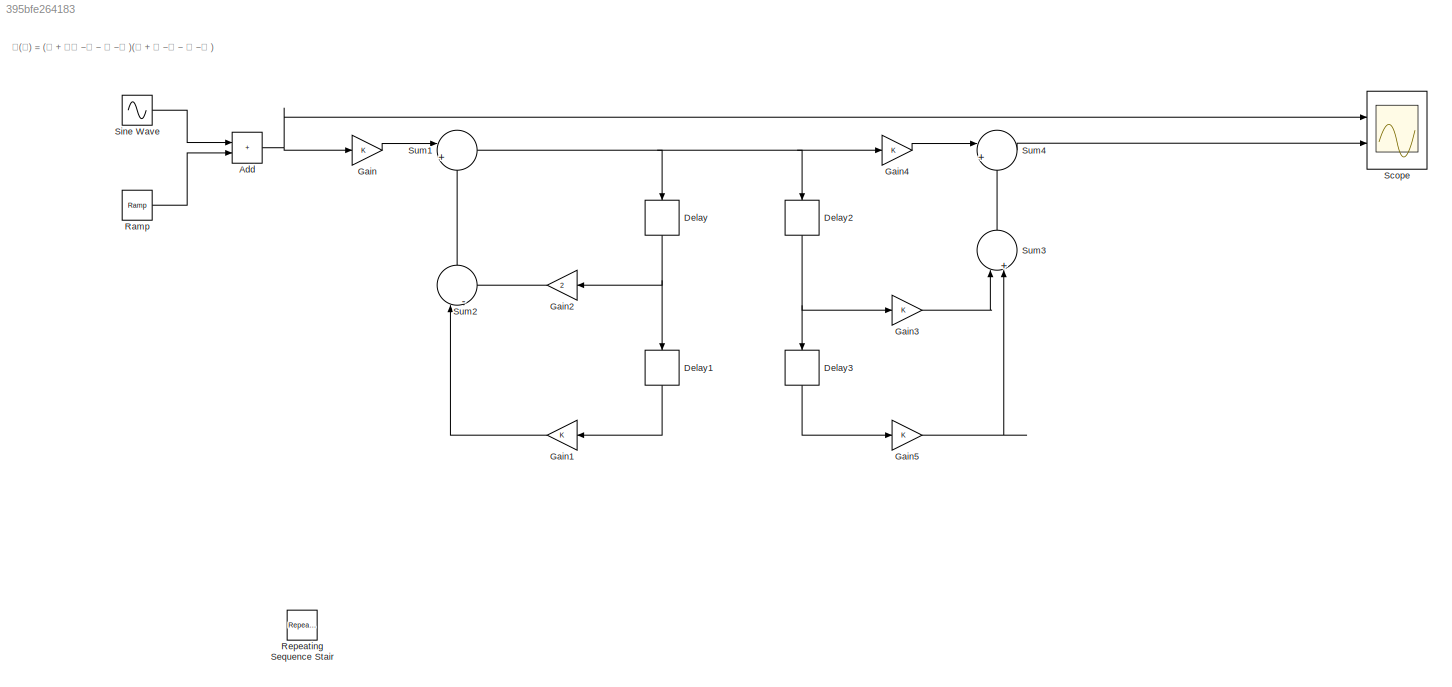
MODEL slx_395bfe264183
KIND model
CONFIG AbsTol = auto
CONFIG EnableMultiTasking = off
CONFIG FixedStep = auto
CONFIG MaxStep = 0.01
CONFIG MinStep = auto
CONFIG RelTol = 1e-3
CONFIG SampleTimeConstraint = Unconstrained
CONFIG SolverName = FixedStepAuto
CONFIG StartTime = 0.0
CONFIG StopTime = 10
BLOCK [Sum] Add
  IconShape = rectangular
  Ports = [2, 1]
BLOCK [Delay] Delay
  DelayLength = 1
  InitialCondition = 0
  InputPortMap = u0
  NameLocation = left
  Ports = [1, 1]
BLOCK [Delay] Delay1
  DelayLength = 1
  InitialCondition = 0
  InputPortMap = u0
  NameLocation = left
  Ports = [1, 1]
BLOCK [Delay] Delay2
  DelayLength = 1
  InitialCondition = 0
  InputPortMap = u0
  NameLocation = left
  Ports = [1, 1]
BLOCK [Delay] Delay3
  DelayLength = 1
  InitialCondition = 0
  InputPortMap = u0
  NameLocation = left
  Ports = [1, 1]
BLOCK [Gain] Gain
BLOCK [Gain] Gain1
  NameLocation = top
BLOCK [Gain] Gain2
  Gain = 2
  NameLocation = top
BLOCK [Gain] Gain3
BLOCK [Gain] Gain4
BLOCK [Gain] Gain5
BLOCK [Reference] Ramp  REF=simulink/Sources/Ramp
  Ports = [0, 1]
  SourceBlock = simulink/Sources/Ramp
  SourceProductBaseCode = SL
  SourceType = Ramp
BLOCK [Reference] Repeating Sequence Stair  REF=simulink/Sources/Repeating
Sequence
Stair
  Commented = on
  Ports = [0, 1]
  SourceBlock = simulink/Sources/Repeating\nSequence\nStair
  SourceProductBaseCode = SL
  SourceType = Repeating Sequence Stair
BLOCK [Scope] Scope
  Floating = off
  NumInputPorts = 2
  Ports = [2]
  ScopeSpecificationString = Simulink.scopes.TimeScopeBlockCfg('CurrentConfiguration', extmgr.ConfigurationSet(extmgr.Configuration('Core','General UI',true),extmgr.Configuration('Core','Source UI',true),extmgr.Configuration('Sources','WiredSimulink',true),extmgr.Configuration('Visuals','Time Domain',true,'SerializedDisplays',{struct('MinYLimReal','-2.32599','MaxYLimReal','24.6043','YLabelReal','','MinYLimMag','0.00000','MaxY...<+2104ch>
BLOCK [Sin] Sine Wave
  Amplitude = 5
  Frequency = 25
  Ports = [0, 1]
  SampleTime = 0
BLOCK [Sum] Sum1
  Inputs = |++
  Ports = [2, 1]
BLOCK [Sum] Sum2
  Inputs = |-+
  NameLocation = right
  Ports = [2, 1]
BLOCK [Sum] Sum3
  Inputs = |+-
  NameLocation = right
  Ports = [2, 1]
BLOCK [Sum] Sum4
  Inputs = |++
  Ports = [2, 1]
ANNOTATION (root): 𝐇(𝐳) = (𝟏 + 𝟐𝐳 −𝟏 − 𝐳 −𝟐 )(𝟏 + 𝐳 −𝟏 − 𝐳 −𝟐 )
NET Add:1 -> Gain:1, Scope:1
LINE Delay1:1 -> Gain1:1
NET Delay2:1 -> Delay3:1, Gain3:1
LINE Delay3:1 -> Gain5:1
NET Delay:1 -> Delay1:1, Gain2:1
LINE Gain1:1 -> Sum2:1
LINE Gain2:1 -> Sum2:2
LINE Gain3:1 -> Sum3:1
LINE Gain4:1 -> Sum4:1
LINE Gain5:1 -> Sum3:2
LINE Gain:1 -> Sum1:1
LINE Ramp:1 -> Add:2
LINE Sine Wave:1 -> Add:1
NET Sum1:1 -> Delay2:1, Delay:1, Gain4:1
LINE Sum2:1 -> Sum1:2
LINE Sum3:1 -> Sum4:2
LINE Sum4:1 -> Scope:2
note: NET lines group one-source signal fan-out (src -> all destinations, sorted); 1:1 wires keep LINE
